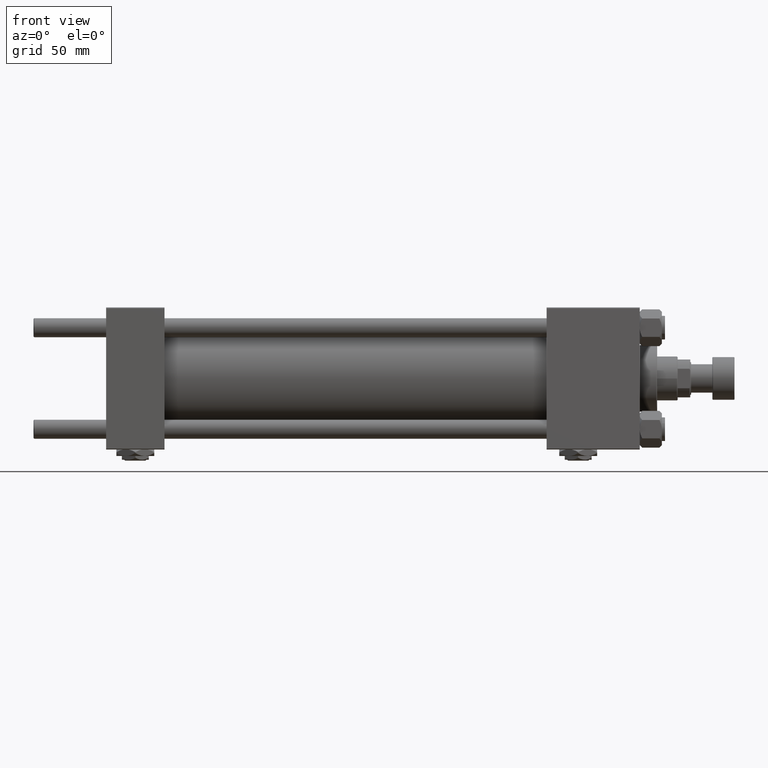
[diagram: clean part render]
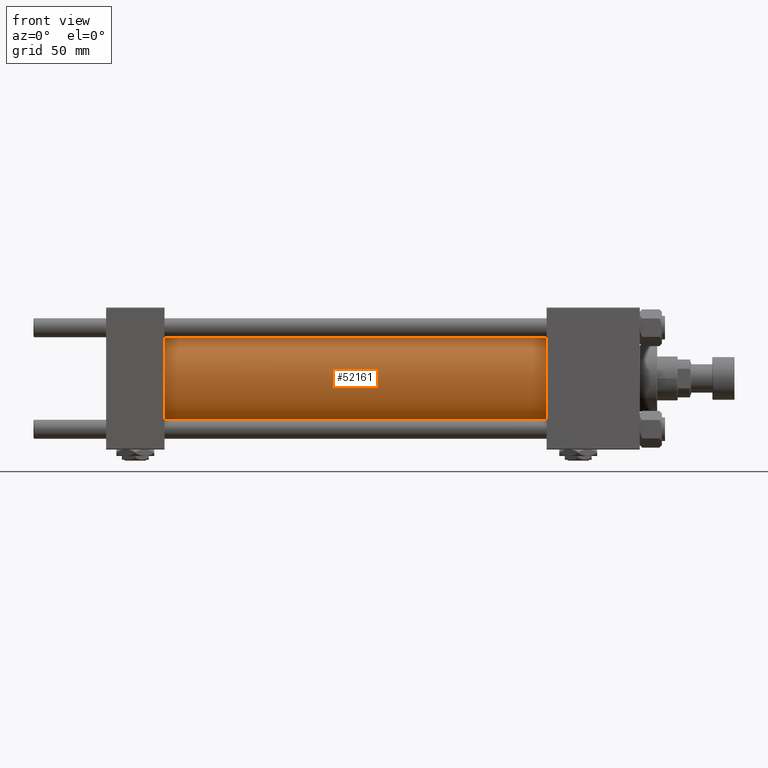
[diagram: same view with one face highlighted and labeled with its STEP entity id]
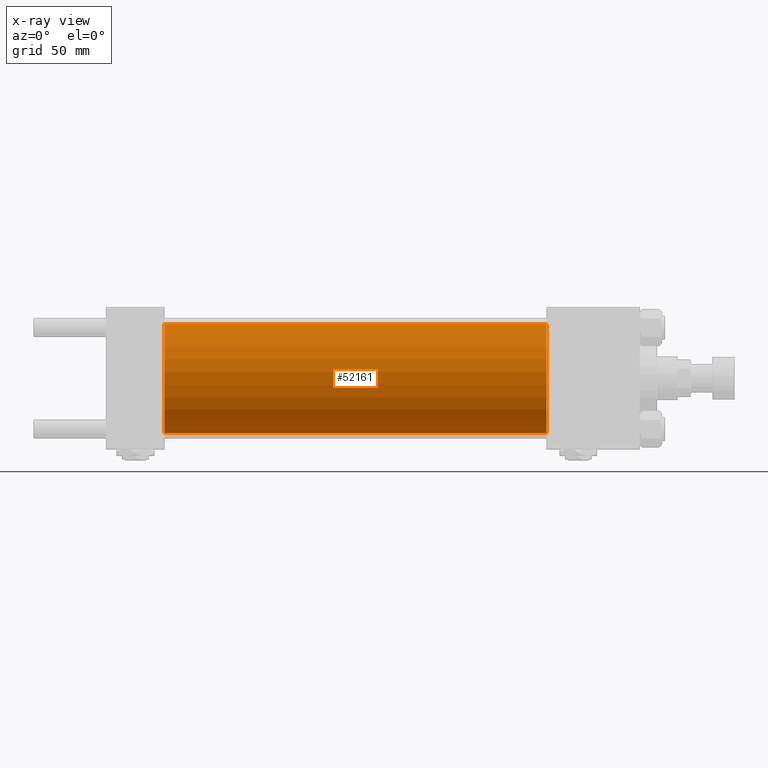
[diagram: x-ray of the same camera — body ghosted, the highlighted face saturated]
A machine part, front view. The second image highlights one B-rep face of the part: STEP entity #52161.
The next image is the same camera in x-ray: the body ghosted, the highlighted face saturated — about 0% of this face is hidden behind the body in this view.
In plain terms, the highlighted cylindrical surface (partial cylindrical patch) has radius 34.5 mm, axis along (-1, -0, -0).
Its self-contained STEP definition (entity closure, byte-faithful):
#2298 = DIRECTION ( 'NONE',  ( -1.000000000000000000, -0.000000000000000000, -0.000000000000000000 ) ) ;
#4030 = CIRCLE ( 'NONE', #9960, 34.49999999999999289 ) ;
#4541 = CARTESIAN_POINT ( 'NONE',  ( 37.00000000000000711, 4.225031457058367344E-15, -34.49999999999999289 ) ) ;
#4971 = VECTOR ( 'NONE', #9411, 1000.000000000000000 ) ;
#6882 = EDGE_CURVE ( 'NONE', #31438, #51812, #46470, .T. ) ;
#7263 = EDGE_CURVE ( 'NONE', #31438, #23307, #4030, .T. ) ;
#9105 = DIRECTION ( 'NONE',  ( 1.000000000000000000, -0.000000000000000000, 0.000000000000000000 ) ) ;
#9411 = DIRECTION ( 'NONE',  ( -1.000000000000000000, -0.000000000000000000, -0.000000000000000000 ) ) ;
#9709 = EDGE_CURVE ( 'NONE', #23307, #17109, #49615, .T. ) ;
#9960 = AXIS2_PLACEMENT_3D ( 'NONE', #49982, #17447, #45762 ) ;
#10249 = CIRCLE ( 'NONE', #47387, 34.49999999999999289 ) ;
#10735 = VECTOR ( 'NONE', #2298, 1000.000000000000000 ) ;
#12136 = CYLINDRICAL_SURFACE ( 'NONE', #44374, 34.49999999999999289 ) ;
#13380 = CARTESIAN_POINT ( 'NONE',  ( 278.9999999999999432, 4.225031457058367344E-15, -34.49999999999999289 ) ) ;
#14824 = ORIENTED_EDGE ( 'NONE', *, *, #9709, .F. ) ;
#16873 = DIRECTION ( 'NONE',  ( 0.000000000000000000, 0.000000000000000000, 1.000000000000000000 ) ) ;
#17109 = VERTEX_POINT ( 'NONE', #4541 ) ;
#17447 = DIRECTION ( 'NONE',  ( 1.000000000000000000, 0.000000000000000000, 0.000000000000000000 ) ) ;
#18929 = CARTESIAN_POINT ( 'NONE',  ( 278.9999999999999432, 0.000000000000000000, 34.49999999999999289 ) ) ;
#23307 = VERTEX_POINT ( 'NONE', #46770 ) ;
#24051 = ORIENTED_EDGE ( 'NONE', *, *, #32949, .T. ) ;
#24812 = DIRECTION ( 'NONE',  ( -1.000000000000000000, -0.000000000000000000, -0.000000000000000000 ) ) ;
#28564 = ORIENTED_EDGE ( 'NONE', *, *, #6882, .T. ) ;
#28796 = CARTESIAN_POINT ( 'NONE',  ( 278.9999999999999432, 0.000000000000000000, 0.000000000000000000 ) ) ;
#30208 = CARTESIAN_POINT ( 'NONE',  ( 37.00000000000000711, 0.000000000000000000, 34.49999999999999289 ) ) ;
#31438 = VERTEX_POINT ( 'NONE', #34049 ) ;
#32949 = EDGE_CURVE ( 'NONE', #51812, #17109, #10249, .T. ) ;
#33916 = ORIENTED_EDGE ( 'NONE', *, *, #7263, .F. ) ;
#34049 = CARTESIAN_POINT ( 'NONE',  ( 278.9999999999999432, 0.000000000000000000, 34.49999999999999289 ) ) ;
#38408 = EDGE_LOOP ( 'NONE', ( #14824, #33916, #28564, #24051 ) ) ;
#40961 = FACE_OUTER_BOUND ( 'NONE', #38408, .T. ) ;
#44374 = AXIS2_PLACEMENT_3D ( 'NONE', #28796, #24812, #16873 ) ;
#45609 = DIRECTION ( 'NONE',  ( 0.000000000000000000, 0.000000000000000000, 1.000000000000000000 ) ) ;
#45762 = DIRECTION ( 'NONE',  ( 0.000000000000000000, 0.000000000000000000, -1.000000000000000000 ) ) ;
#46470 = LINE ( 'NONE', #18929, #10735 ) ;
#46770 = CARTESIAN_POINT ( 'NONE',  ( 278.9999999999999432, 4.225031457058367344E-15, -34.49999999999999289 ) ) ;
#47387 = AXIS2_PLACEMENT_3D ( 'NONE', #49566, #9105, #45609 ) ;
#49566 = CARTESIAN_POINT ( 'NONE',  ( 37.00000000000000711, 0.000000000000000000, 0.000000000000000000 ) ) ;
#49615 = LINE ( 'NONE', #13380, #4971 ) ;
#49982 = CARTESIAN_POINT ( 'NONE',  ( 278.9999999999999432, 0.000000000000000000, 0.000000000000000000 ) ) ;
#51812 = VERTEX_POINT ( 'NONE', #30208 ) ;
#52161 = ADVANCED_FACE ( 'NONE', ( #40961 ), #12136, .T. ) ;